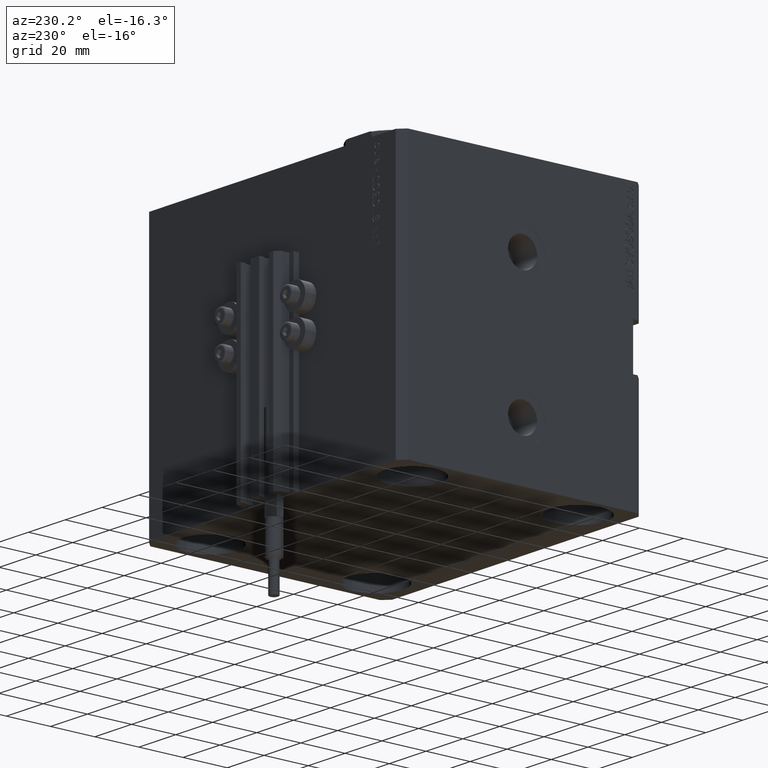
[diagram: clean part render]
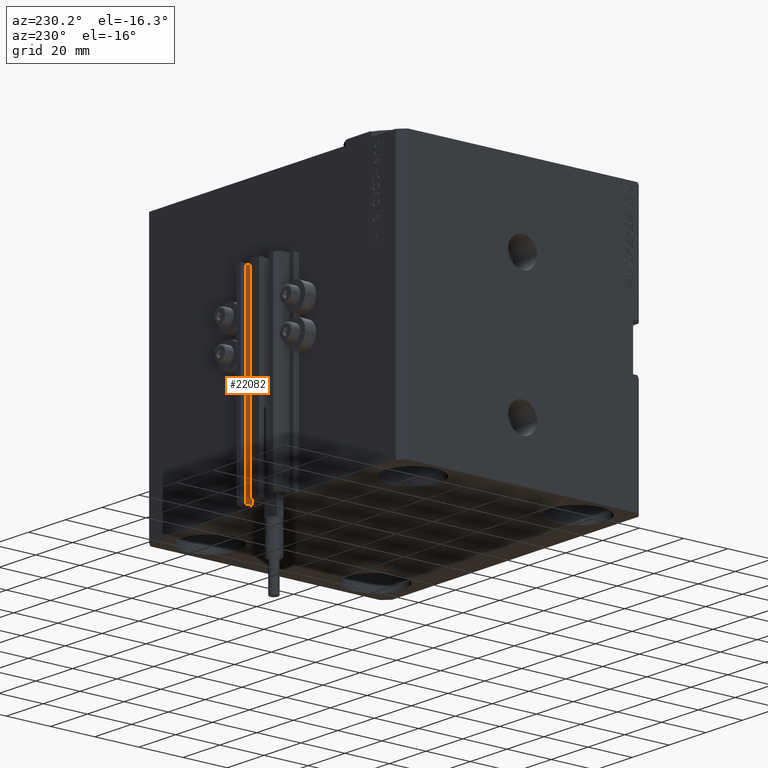
[diagram: same view with one face highlighted and labeled with its STEP entity id]
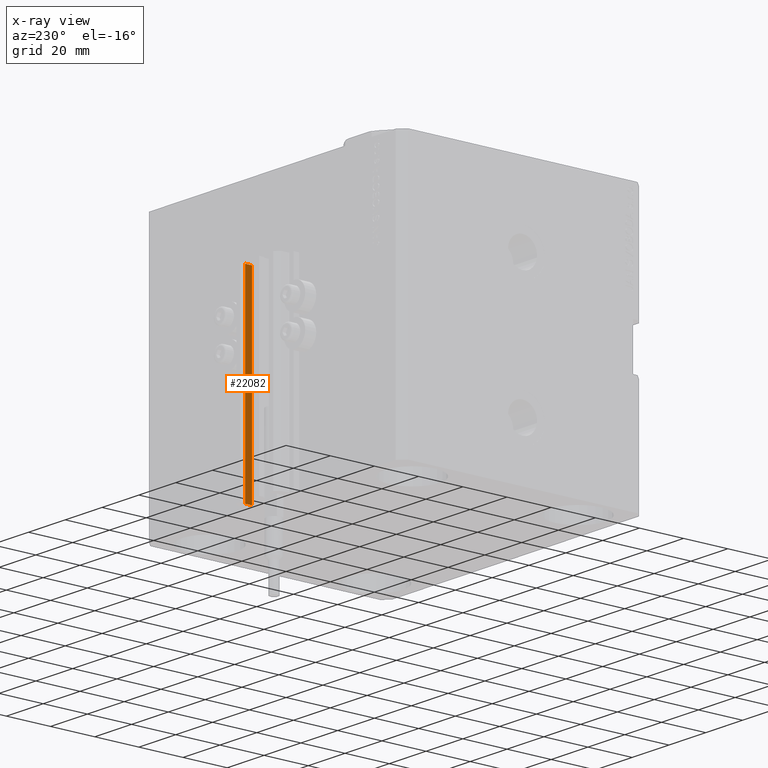
[diagram: x-ray of the same camera — body ghosted, the highlighted face saturated]
A machine part, auxiliary view. The second image highlights one B-rep face of the part: STEP entity #22082.
The next image is the same camera in x-ray: the body ghosted, the highlighted face saturated — about 0% of this face is hidden behind the body in this view.
In plain terms, the highlighted planar face has unit normal (-1, 0, 0).
Its self-contained STEP definition (entity closure, byte-faithful):
#961 = CARTESIAN_POINT ( 'NONE',  ( 8.399999999999995026, 60.40000000000003411, -120.0000000000000000 ) ) ;
#2762 = PLANE ( 'NONE',  #36479 ) ;
#3641 = DIRECTION ( 'NONE',  ( -5.421010862427484699E-16, -1.000000000000000000, 0.000000000000000000 ) ) ;
#4420 = DIRECTION ( 'NONE',  ( 0.000000000000000000, 0.000000000000000000, 1.000000000000000000 ) ) ;
#6921 = VERTEX_POINT ( 'NONE', #40067 ) ;
#7397 = LINE ( 'NONE', #22182, #33163 ) ;
#10138 = EDGE_CURVE ( 'NONE', #6921, #20688, #23351, .T. ) ;
#10401 = CARTESIAN_POINT ( 'NONE',  ( 8.400000000000000355, 57.20000000000001705, -120.0000000000000000 ) ) ;
#16297 = EDGE_CURVE ( 'NONE', #42874, #6921, #47251, .T. ) ;
#18576 = CARTESIAN_POINT ( 'NONE',  ( 8.400000000000000355, 57.20000000000001705, -33.00000000000000000 ) ) ;
#18770 = DIRECTION ( 'NONE',  ( -1.000000000000000000, 5.421010862427484699E-16, 0.000000000000000000 ) ) ;
#20310 = DIRECTION ( 'NONE',  ( -5.421010862427484699E-16, -1.000000000000000000, 0.000000000000000000 ) ) ;
#20688 = VERTEX_POINT ( 'NONE', #18576 ) ;
#22082 = ADVANCED_FACE ( 'NONE', ( #41350 ), #2762, .T. ) ;
#22182 = CARTESIAN_POINT ( 'NONE',  ( 8.400000000000000355, 60.40000000000003411, -120.0000000000000000 ) ) ;
#23351 = LINE ( 'NONE', #38647, #44195 ) ;
#25766 = DIRECTION ( 'NONE',  ( 0.000000000000000000, 0.000000000000000000, 1.000000000000000000 ) ) ;
#25813 = CARTESIAN_POINT ( 'NONE',  ( 8.400000000000000355, 60.40000000000003411, -120.0000000000000000 ) ) ;
#27752 = VERTEX_POINT ( 'NONE', #10401 ) ;
#29032 = ORIENTED_EDGE ( 'NONE', *, *, #16297, .F. ) ;
#29287 = LINE ( 'NONE', #40799, #45975 ) ;
#31162 = ORIENTED_EDGE ( 'NONE', *, *, #39882, .T. ) ;
#31226 = CARTESIAN_POINT ( 'NONE',  ( 8.399999999999995026, 60.40000000000003411, -120.0000000000000000 ) ) ;
#33163 = VECTOR ( 'NONE', #3641, 1000.000000000000000 ) ;
#34056 = ORIENTED_EDGE ( 'NONE', *, *, #42950, .T. ) ;
#36479 = AXIS2_PLACEMENT_3D ( 'NONE', #25813, #18770, #45118 ) ;
#38647 = CARTESIAN_POINT ( 'NONE',  ( 8.400000000000000355, 60.40000000000003411, -33.00000000000000000 ) ) ;
#39503 = ORIENTED_EDGE ( 'NONE', *, *, #10138, .F. ) ;
#39882 = EDGE_CURVE ( 'NONE', #42874, #27752, #7397, .T. ) ;
#40067 = CARTESIAN_POINT ( 'NONE',  ( 8.399999999999995026, 60.40000000000003411, -33.00000000000000000 ) ) ;
#40799 = CARTESIAN_POINT ( 'NONE',  ( 8.400000000000000355, 57.20000000000001705, -120.0000000000000000 ) ) ;
#41350 = FACE_OUTER_BOUND ( 'NONE', #42536, .T. ) ;
#42536 = EDGE_LOOP ( 'NONE', ( #39503, #29032, #31162, #34056 ) ) ;
#42830 = VECTOR ( 'NONE', #4420, 1000.000000000000000 ) ;
#42874 = VERTEX_POINT ( 'NONE', #961 ) ;
#42950 = EDGE_CURVE ( 'NONE', #27752, #20688, #29287, .T. ) ;
#44195 = VECTOR ( 'NONE', #20310, 1000.000000000000000 ) ;
#45118 = DIRECTION ( 'NONE',  ( -5.421010862427484699E-16, -1.000000000000000000, 0.000000000000000000 ) ) ;
#45975 = VECTOR ( 'NONE', #25766, 1000.000000000000000 ) ;
#47251 = LINE ( 'NONE', #31226, #42830 ) ;